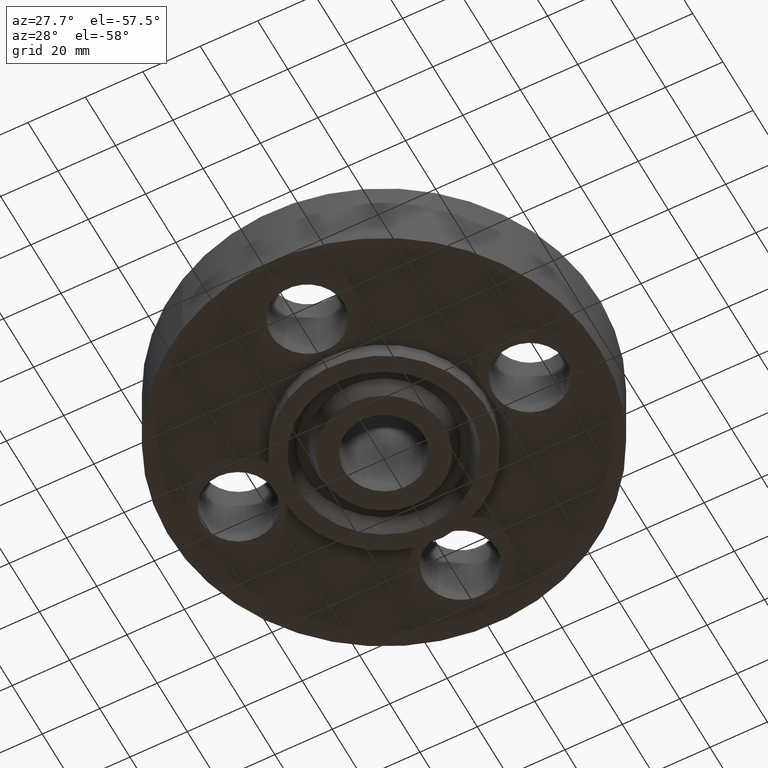
[diagram: clean part render]
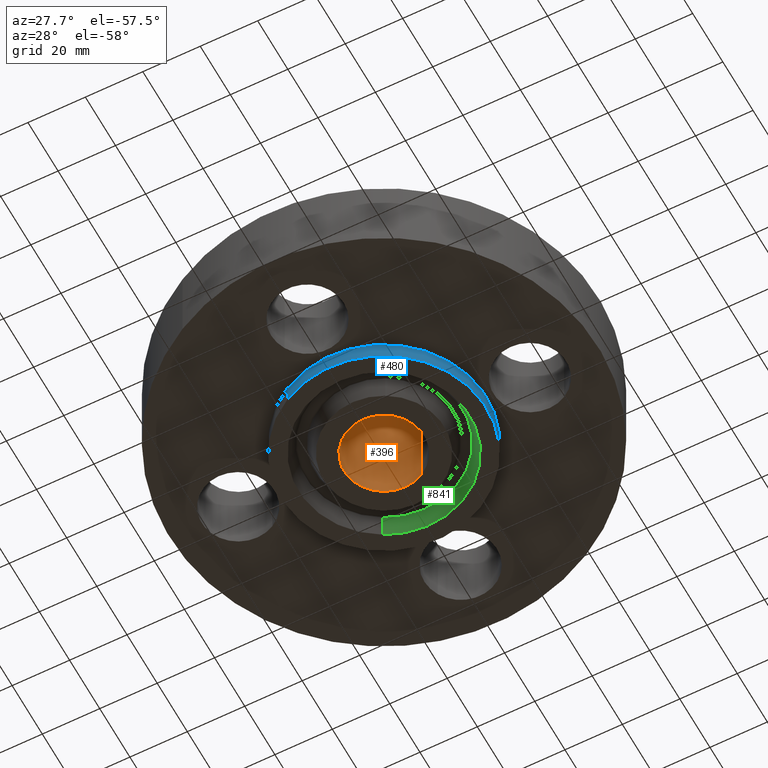
[diagram: same view with three faces highlighted in distinct colors, each labeled with its STEP entity id]
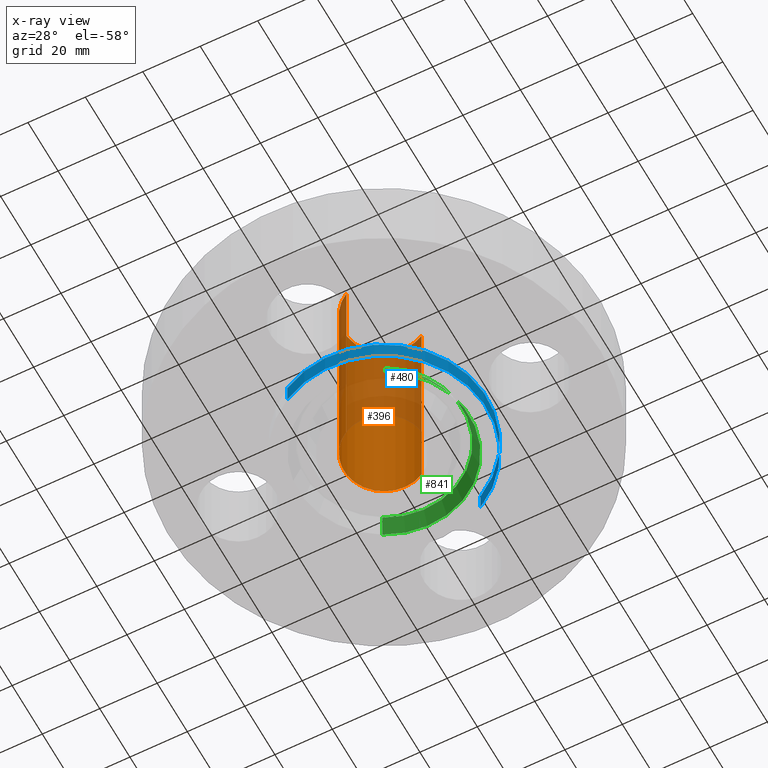
[diagram: x-ray of the same camera — body ghosted, the three highlighted faces saturated]
A machine part, auxiliary view with three faces highlighted in distinct colors.
The next image is the same camera in x-ray (body ghosted, the three faces saturated) — at least one of them is partly hidden behind the body in this view.
Their STEP definitions:

[orange] entity #396 — the highlighted cylindrical surface (partial cylindrical patch) has radius 13.9319 mm, axis along (0, 0, -1).
#343=AXIS2_PLACEMENT_3D('Cylinder Axis2P3D',#340,#341,#342) ;
#382=AXIS2_PLACEMENT_3D('Circle Axis2P3D',#380,#381,$) ;
#387=AXIS2_PLACEMENT_3D('Circle Axis2P3D',#385,#386,$) ;
#340=CARTESIAN_POINT('Axis2P3D Location',(0.,0.,1.31500000001)) ;
#349=CARTESIAN_POINT('Vertex',(0.262964907925,0.481354035199,2.88000000001)) ;
#351=CARTESIAN_POINT('Vertex',(-0.262964907925,-0.481354035199,2.88000000001)) ;
#354=CARTESIAN_POINT('Line Origine',(0.262964907925,0.481354035199,1.31500000001)) ;
#358=CARTESIAN_POINT('Vertex',(0.262964907925,0.481354035199,-0.250000000001)) ;
#365=CARTESIAN_POINT('Vertex',(-0.262964907925,-0.481354035199,-0.250000000001)) ;
#368=CARTESIAN_POINT('Line Origine',(-0.262964907925,-0.481354035199,1.31500000001)) ;
#380=CARTESIAN_POINT('Axis2P3D Location',(0.,0.,2.88000000001)) ;
#385=CARTESIAN_POINT('Axis2P3D Location',(0.,0.,-0.250000000001)) ;
#341=DIRECTION('Axis2P3D Direction',(0.,0.,-0.0393700787402)) ;
#342=DIRECTION('Axis2P3D XDirection',(-0.0188750212049,-0.0345504945626,0.)) ;
#355=DIRECTION('Vector Direction',(0.,0.,-0.0393700787402)) ;
#369=DIRECTION('Vector Direction',(0.,0.,-0.0393700787402)) ;
#381=DIRECTION('Axis2P3D Direction',(0.,0.,-0.0393700787402)) ;
#386=DIRECTION('Axis2P3D Direction',(0.,0.,-0.0393700787402)) ;
#356=VECTOR('Line Direction',#355,0.0393700787402) ;
#370=VECTOR('Line Direction',#369,0.0393700787402) ;
#391=ORIENTED_EDGE('',*,*,#384,.F.) ;
#392=ORIENTED_EDGE('',*,*,#372,.T.) ;
#393=ORIENTED_EDGE('',*,*,#389,.T.) ;
#394=ORIENTED_EDGE('',*,*,#360,.F.) ;
#396=ADVANCED_FACE('PartBody',(#395),#344,.F.) ;
#383=CIRCLE('generated circle',#382,0.548500000002) ;
#388=CIRCLE('generated circle',#387,0.548500000002) ;
#344=CYLINDRICAL_SURFACE('generated cylinder',#343,0.548500000002) ;
#360=EDGE_CURVE('',#350,#359,#357,.T.) ;
#372=EDGE_CURVE('',#352,#366,#371,.T.) ;
#384=EDGE_CURVE('',#352,#350,#383,.T.) ;
#389=EDGE_CURVE('',#366,#359,#388,.T.) ;
#390=EDGE_LOOP('',(#391,#392,#393,#394)) ;
#395=FACE_OUTER_BOUND('',#390,.T.) ;
#357=LINE('Line',#354,#356) ;
#371=LINE('Line',#368,#370) ;
#350=VERTEX_POINT('',#349) ;
#352=VERTEX_POINT('',#351) ;
#359=VERTEX_POINT('',#358) ;
#366=VERTEX_POINT('',#365) ;

[blue] entity #480 — the highlighted cylindrical surface (partial cylindrical patch) has radius 35.7251 mm, axis along (0, 0, -1).
#427=AXIS2_PLACEMENT_3D('Cylinder Axis2P3D',#424,#425,#426) ;
#466=AXIS2_PLACEMENT_3D('Circle Axis2P3D',#464,#465,$) ;
#471=AXIS2_PLACEMENT_3D('Circle Axis2P3D',#469,#470,$) ;
#424=CARTESIAN_POINT('Axis2P3D Location',(0.,0.,1.31500000001)) ;
#433=CARTESIAN_POINT('Vertex',(-0.67431202005,-1.2343198733,-0.250000000001)) ;
#435=CARTESIAN_POINT('Vertex',(0.67431202005,1.2343198733,-0.250000000001)) ;
#438=CARTESIAN_POINT('Line Origine',(-0.67431202005,-1.2343198733,-0.125000000001)) ;
#442=CARTESIAN_POINT('Vertex',(-0.67431202005,-1.2343198733,0.)) ;
#449=CARTESIAN_POINT('Vertex',(0.67431202005,1.2343198733,0.)) ;
#452=CARTESIAN_POINT('Line Origine',(0.67431202005,1.2343198733,-0.125000000001)) ;
#464=CARTESIAN_POINT('Axis2P3D Location',(0.,0.,-0.250000000001)) ;
#469=CARTESIAN_POINT('Axis2P3D Location',(0.,0.,0.)) ;
#425=DIRECTION('Axis2P3D Direction',(0.,0.,-0.0393700787402)) ;
#426=DIRECTION('Axis2P3D XDirection',(0.0188750212049,0.0345504945626,0.)) ;
#439=DIRECTION('Vector Direction',(0.,0.,-0.0393700787402)) ;
#453=DIRECTION('Vector Direction',(0.,0.,-0.0393700787402)) ;
#465=DIRECTION('Axis2P3D Direction',(0.,0.,-0.0393700787402)) ;
#470=DIRECTION('Axis2P3D Direction',(0.,0.,-0.0393700787402)) ;
#440=VECTOR('Line Direction',#439,0.0393700787402) ;
#454=VECTOR('Line Direction',#453,0.0393700787402) ;
#475=ORIENTED_EDGE('',*,*,#468,.F.) ;
#476=ORIENTED_EDGE('',*,*,#456,.T.) ;
#477=ORIENTED_EDGE('',*,*,#473,.T.) ;
#478=ORIENTED_EDGE('',*,*,#444,.F.) ;
#480=ADVANCED_FACE('PartBody',(#479),#428,.T.) ;
#467=CIRCLE('generated circle',#466,1.40650000001) ;
#472=CIRCLE('generated circle',#471,1.40650000001) ;
#428=CYLINDRICAL_SURFACE('generated cylinder',#427,1.40650000001) ;
#444=EDGE_CURVE('',#434,#443,#441,.F.) ;
#456=EDGE_CURVE('',#436,#450,#455,.F.) ;
#468=EDGE_CURVE('',#436,#434,#467,.T.) ;
#473=EDGE_CURVE('',#450,#443,#472,.T.) ;
#474=EDGE_LOOP('',(#475,#476,#477,#478)) ;
#479=FACE_OUTER_BOUND('',#474,.T.) ;
#441=LINE('Line',#438,#440) ;
#455=LINE('Line',#452,#454) ;
#434=VERTEX_POINT('',#433) ;
#436=VERTEX_POINT('',#435) ;
#443=VERTEX_POINT('',#442) ;
#450=VERTEX_POINT('',#449) ;

[green] entity #841 — the highlighted conical surface has half-angle 23 deg.
#702=AXIS2_PLACEMENT_3D('Circle Axis2P3D',#700,#701,$) ;
#776=AXIS2_PLACEMENT_3D('Cone Axis2P3D',#773,#774,#775) ;
#797=AXIS2_PLACEMENT_3D('Circle Axis2P3D',#795,#796,$) ;
#695=CARTESIAN_POINT('Vertex',(0.561886731246,-1.02852676254,-0.250000000001)) ;
#697=CARTESIAN_POINT('Vertex',(-0.561886731246,1.02852676254,-0.250000000001)) ;
#700=CARTESIAN_POINT('Axis2P3D Location',(-1.04902962957E-016,-2.09805925913E-016,-0.250000000001)) ;
#742=CARTESIAN_POINT('Vertex',(-0.514854363898,0.942434591585,-0.0188873350169)) ;
#744=CARTESIAN_POINT('Vertex',(0.514854363898,-0.942434591585,-0.0188873350169)) ;
#773=CARTESIAN_POINT('Axis2P3D Location',(0.,0.,-0.0188873350169)) ;
#778=CARTESIAN_POINT('Line Origine',(-0.538370547572,0.985480677062,-0.134443667509)) ;
#783=CARTESIAN_POINT('Line Origine',(0.538370547572,-0.985480677062,-0.134443667509)) ;
#795=CARTESIAN_POINT('Axis2P3D Location',(0.,0.,-0.0188873350169)) ;
#701=DIRECTION('Axis2P3D Direction',(0.,0.,-0.0393700787402)) ;
#774=DIRECTION('Axis2P3D Direction',(-0.,-0.,-0.0393700787402)) ;
#775=DIRECTION('Axis2P3D XDirection',(-0.0188750212049,0.0345504945626,0.)) ;
#779=DIRECTION('Vector Direction',(-0.00737505833565,0.0134999537303,-0.0362403485611)) ;
#784=DIRECTION('Vector Direction',(0.00737505833565,-0.0134999537303,-0.0362403485611)) ;
#796=DIRECTION('Axis2P3D Direction',(0.,0.,0.0393700787402)) ;
#780=VECTOR('Line Direction',#779,0.0393700787402) ;
#785=VECTOR('Line Direction',#784,0.0393700787402) ;
#836=ORIENTED_EDGE('',*,*,#704,.T.) ;
#837=ORIENTED_EDGE('',*,*,#787,.T.) ;
#838=ORIENTED_EDGE('',*,*,#799,.T.) ;
#839=ORIENTED_EDGE('',*,*,#782,.F.) ;
#841=ADVANCED_FACE('PartBody',(#840),#777,.F.) ;
#703=CIRCLE('generated circle',#702,1.172) ;
#798=CIRCLE('generated circle',#797,1.07389849401) ;
#777=CONICAL_SURFACE('Cone',#776,1.07389849401,0.401425727959) ;
#704=EDGE_CURVE('',#698,#696,#703,.T.) ;
#782=EDGE_CURVE('',#698,#743,#781,.F.) ;
#787=EDGE_CURVE('',#696,#745,#786,.F.) ;
#799=EDGE_CURVE('',#745,#743,#798,.T.) ;
#835=EDGE_LOOP('',(#836,#837,#838,#839)) ;
#840=FACE_OUTER_BOUND('',#835,.T.) ;
#781=LINE('Line',#778,#780) ;
#786=LINE('Line',#783,#785) ;
#696=VERTEX_POINT('',#695) ;
#698=VERTEX_POINT('',#697) ;
#743=VERTEX_POINT('',#742) ;
#745=VERTEX_POINT('',#744) ;